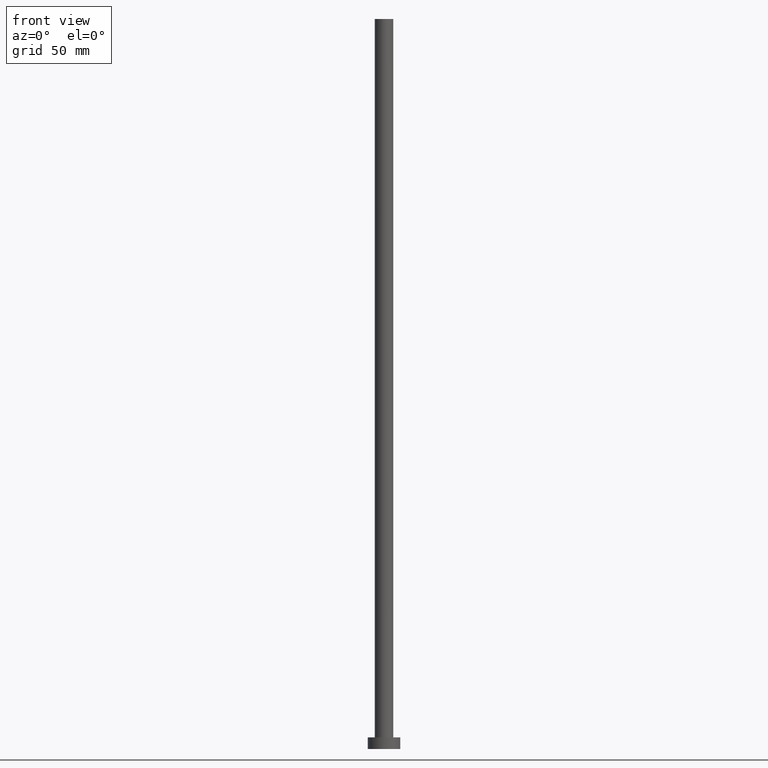
[diagram: clean part render]
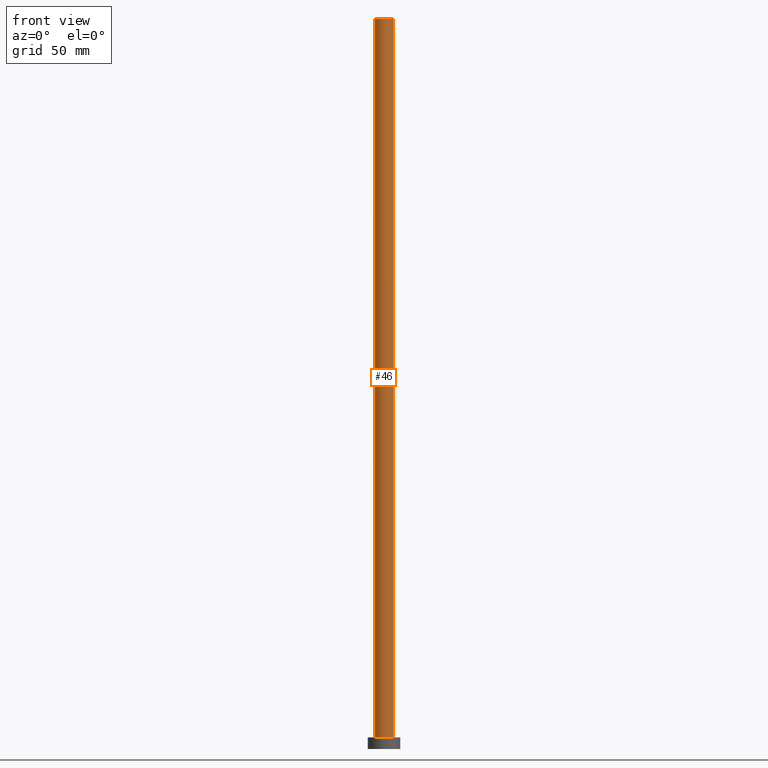
[diagram: same view with one face highlighted and labeled with its STEP entity id]
A machine part, front view. The second image highlights one B-rep face of the part: STEP entity #46.
In plain terms, the highlighted cylindrical surface (edge-blend (fillet) strip) has radius 4 mm, axis along (-0, -0, -1).
Its self-contained STEP definition (entity closure, byte-faithful):
#2 = DIRECTION ( 'NONE',  ( 0.000000000000000000, 0.000000000000000000, 1.000000000000000000 ) ) ;
#8 = DIRECTION ( 'NONE',  ( -1.000000000000000000, 0.000000000000000000, 0.000000000000000000 ) ) ;
#18 = ORIENTED_EDGE ( 'NONE', *, *, #140, .F. ) ;
#24 = DIRECTION ( 'NONE',  ( 1.000000000000000000, 0.000000000000000000, 0.000000000000000000 ) ) ;
#38 = VECTOR ( 'NONE', #223, 1000.000000000000000 ) ;
#39 = ORIENTED_EDGE ( 'NONE', *, *, #136, .F. ) ;
#46 = ADVANCED_FACE ( 'NONE', ( #114 ), #100, .T. ) ;
#48 = ORIENTED_EDGE ( 'NONE', *, *, #231, .T. ) ;
#55 = AXIS2_PLACEMENT_3D ( 'NONE', #222, #158, #8 ) ;
#58 = VERTEX_POINT ( 'NONE', #116 ) ;
#61 = CARTESIAN_POINT ( 'NONE',  ( -4.000000000000000000, 0.000000000000000000, 315.0000000000000000 ) ) ;
#75 = CARTESIAN_POINT ( 'NONE',  ( 0.000000000000000000, 0.000000000000000000, 5.000000000000000000 ) ) ;
#81 = CARTESIAN_POINT ( 'NONE',  ( 4.000000000000000000, 4.898587196589412829E-16, 315.0000000000000000 ) ) ;
#84 = LINE ( 'NONE', #202, #191 ) ;
#93 = VERTEX_POINT ( 'NONE', #61 ) ;
#98 = CARTESIAN_POINT ( 'NONE',  ( 0.000000000000000000, 0.000000000000000000, 315.0000000000000000 ) ) ;
#100 = CYLINDRICAL_SURFACE ( 'NONE', #55, 4.000000000000000000 ) ;
#114 = FACE_OUTER_BOUND ( 'NONE', #195, .T. ) ;
#116 = CARTESIAN_POINT ( 'NONE',  ( -4.000000000000000000, 0.000000000000000000, 5.000000000000000000 ) ) ;
#125 = ORIENTED_EDGE ( 'NONE', *, *, #192, .T. ) ;
#131 = DIRECTION ( 'NONE',  ( 0.000000000000000000, 0.000000000000000000, 1.000000000000000000 ) ) ;
#136 = EDGE_CURVE ( 'NONE', #93, #170, #178, .T. ) ;
#140 = EDGE_CURVE ( 'NONE', #170, #253, #84, .T. ) ;
#147 = CIRCLE ( 'NONE', #152, 4.000000000000000000 ) ;
#152 = AXIS2_PLACEMENT_3D ( 'NONE', #75, #131, #24 ) ;
#156 = DIRECTION ( 'NONE',  ( 1.000000000000000000, 0.000000000000000000, 0.000000000000000000 ) ) ;
#158 = DIRECTION ( 'NONE',  ( -0.000000000000000000, -0.000000000000000000, -1.000000000000000000 ) ) ;
#161 = CARTESIAN_POINT ( 'NONE',  ( -4.000000000000000000, 0.000000000000000000, 315.0000000000000000 ) ) ;
#170 = VERTEX_POINT ( 'NONE', #81 ) ;
#176 = CARTESIAN_POINT ( 'NONE',  ( 4.000000000000000000, 4.898587196589412829E-16, 5.000000000000000000 ) ) ;
#178 = CIRCLE ( 'NONE', #249, 4.000000000000000000 ) ;
#191 = VECTOR ( 'NONE', #243, 1000.000000000000000 ) ;
#192 = EDGE_CURVE ( 'NONE', #93, #58, #242, .T. ) ;
#195 = EDGE_LOOP ( 'NONE', ( #18, #39, #125, #48 ) ) ;
#202 = CARTESIAN_POINT ( 'NONE',  ( 4.000000000000000000, 4.898587196589412829E-16, 315.0000000000000000 ) ) ;
#222 = CARTESIAN_POINT ( 'NONE',  ( 0.000000000000000000, 0.000000000000000000, 315.0000000000000000 ) ) ;
#223 = DIRECTION ( 'NONE',  ( -0.000000000000000000, -0.000000000000000000, -1.000000000000000000 ) ) ;
#231 = EDGE_CURVE ( 'NONE', #58, #253, #147, .T. ) ;
#242 = LINE ( 'NONE', #161, #38 ) ;
#243 = DIRECTION ( 'NONE',  ( -0.000000000000000000, -0.000000000000000000, -1.000000000000000000 ) ) ;
#249 = AXIS2_PLACEMENT_3D ( 'NONE', #98, #2, #156 ) ;
#253 = VERTEX_POINT ( 'NONE', #176 ) ;